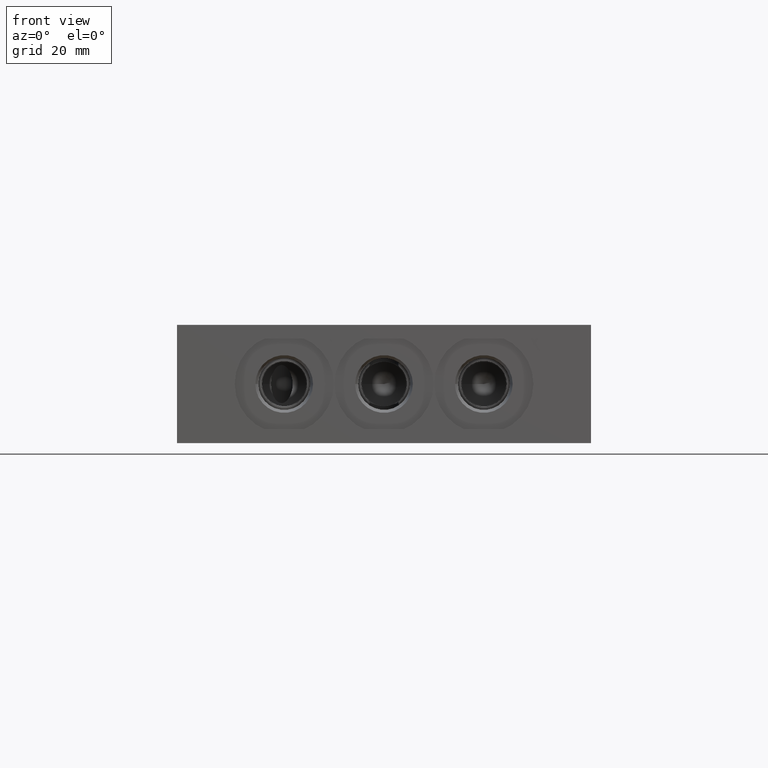
[diagram: clean part render]
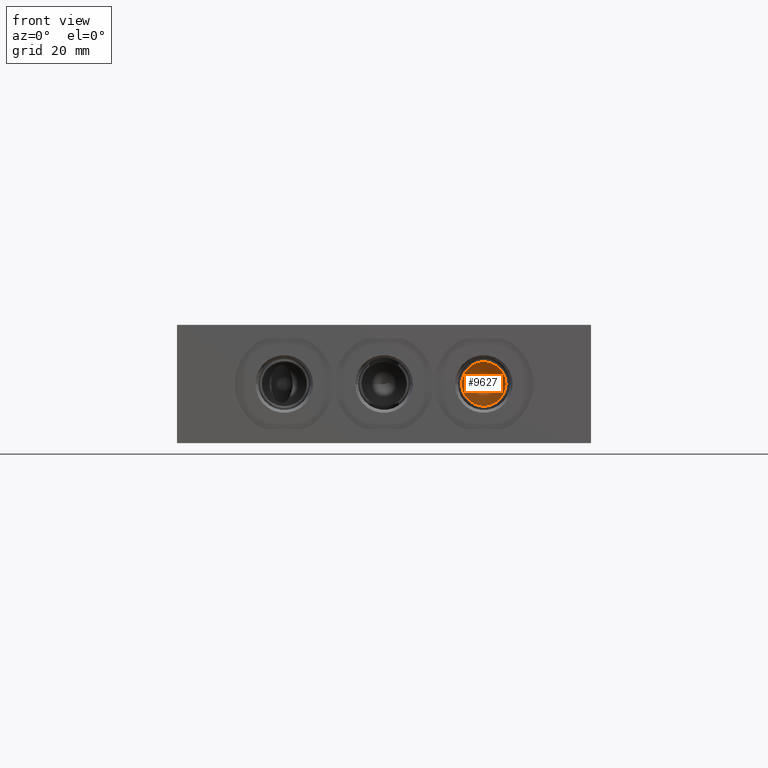
[diagram: same view with one face highlighted and labeled with its STEP entity id]
A machine part, front view. The second image highlights one B-rep face of the part: STEP entity #9627.
In plain terms, the highlighted conical surface has half-angle 60 deg.
Its self-contained STEP definition (entity closure, byte-faithful):
#28=CONICAL_SURFACE('',#10137,2.38125,1.0471975511966);
#152=CIRCLE('',#10138,4.7625);
#153=CIRCLE('',#10139,4.7625);
#1099=FACE_OUTER_BOUND('',#1614,.T.);
#1614=EDGE_LOOP('',(#8147,#8148,#8149,#8150));
#2603=LINE('',#16298,#3542);
#3542=VECTOR('',#12055,2.38125);
#4423=VERTEX_POINT('',#16294);
#4424=VERTEX_POINT('',#16295);
#4425=VERTEX_POINT('',#16297);
#5730=EDGE_CURVE('',#4423,#4424,#152,.T.);
#5731=EDGE_CURVE('',#4424,#4425,#2603,.T.);
#5732=EDGE_CURVE('',#4424,#4423,#153,.T.);
#8147=ORIENTED_EDGE('',*,*,#5730,.T.);
#8148=ORIENTED_EDGE('',*,*,#5731,.T.);
#8149=ORIENTED_EDGE('',*,*,#5731,.F.);
#8150=ORIENTED_EDGE('',*,*,#5732,.T.);
#9627=ADVANCED_FACE('',(#1099),#28,.F.);
#10137=AXIS2_PLACEMENT_3D('',#16293,#12051,#12052);
#10138=AXIS2_PLACEMENT_3D('',#16296,#12053,#12054);
#10139=AXIS2_PLACEMENT_3D('',#16299,#12056,#12057);
#12051=DIRECTION('center_axis',(0.,-1.,0.));
#12052=DIRECTION('ref_axis',(1.,0.,0.));
#12053=DIRECTION('center_axis',(0.,-1.,0.));
#12054=DIRECTION('ref_axis',(1.,0.,0.));
#12055=DIRECTION('',(0.866025403784439,0.5,1.06057523872491E-16));
#12056=DIRECTION('center_axis',(0.,-1.,0.));
#12057=DIRECTION('ref_axis',(1.,0.,0.));
#16293=CARTESIAN_POINT('Origin',(65.8876,24.0251853285078,12.7));
#16294=CARTESIAN_POINT('',(70.6501,22.65037,12.7));
#16295=CARTESIAN_POINT('',(61.1251,22.65037,12.7));
#16296=CARTESIAN_POINT('Origin',(65.8876,22.65037,12.7));
#16297=CARTESIAN_POINT('',(65.8876,25.4000006570156,12.7));
#16298=CARTESIAN_POINT('',(63.50635,24.0251853285078,12.7));
#16299=CARTESIAN_POINT('Origin',(65.8876,22.65037,12.7));